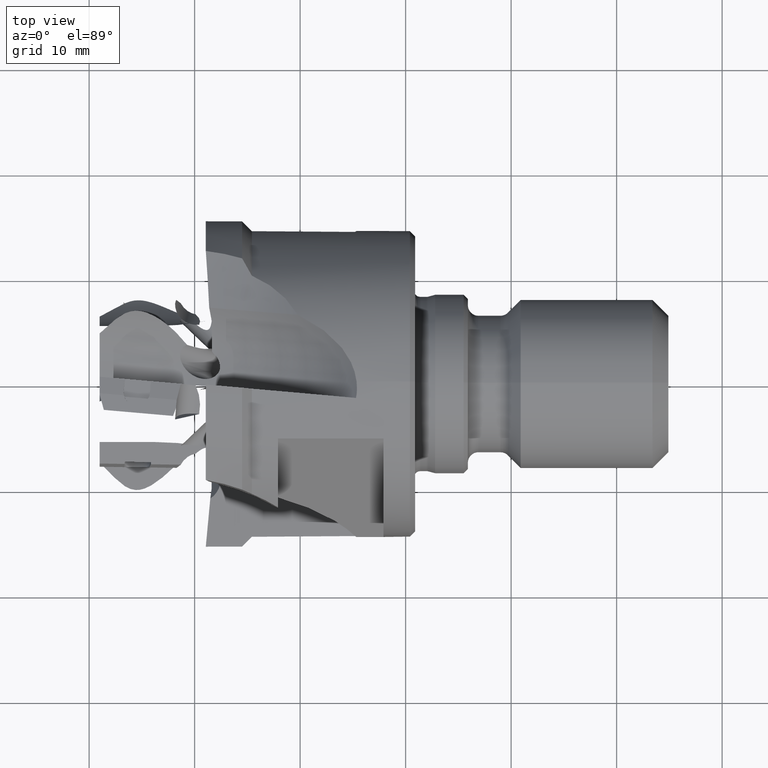
[diagram: clean part render]
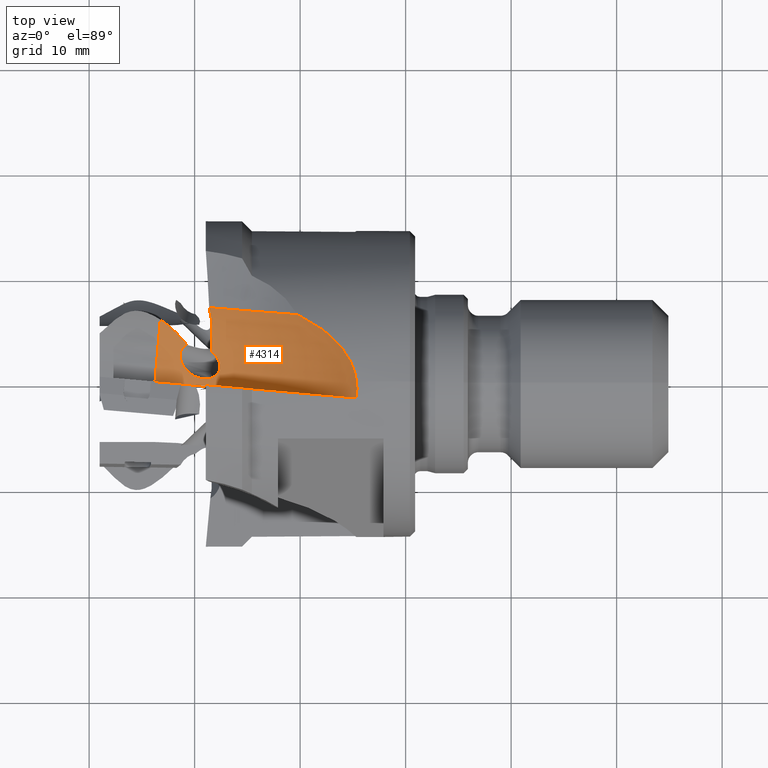
[diagram: same view with one face highlighted and labeled with its STEP entity id]
A machine part, top view. The second image highlights one B-rep face of the part: STEP entity #4314.
In plain terms, the highlighted toroidal blend (fillet) surface has major radius 15 mm and minor (blend) radius 10 mm.
Its self-contained STEP definition (entity closure, byte-faithful):
#149 = CARTESIAN_POINT ( 'NONE',  ( 11.62040207614973900, 5.842839617044916200, 8.169476005907927900 ) ) ;
#177 = AXIS2_PLACEMENT_3D ( 'NONE', #4161, #1742, #4566 ) ;
#202 = ORIENTED_EDGE ( 'NONE', *, *, #1705, .T. ) ;
#216 = CARTESIAN_POINT ( 'NONE',  ( 25.25626421127208200, 0.6180941141647086100, 14.49302102146408100 ) ) ;
#242 = CARTESIAN_POINT ( 'NONE',  ( 8.311445753925987400, 4.700150141738966200, 6.764113308000577100 ) ) ;
#264 = CARTESIAN_POINT ( 'NONE',  ( 12.36820033707103200, 1.210861548241722900, 6.373486843671983600 ) ) ;
#286 = CARTESIAN_POINT ( 'NONE',  ( 9.624440902516836300, 0.8633359141217195100, 5.775683549730444200 ) ) ;
#310 = CARTESIAN_POINT ( 'NONE',  ( 8.973780233219631700, 3.439062724074319000, 6.279026537848094900 ) ) ;
#463 = VERTEX_POINT ( 'NONE', #2333 ) ;
#487 = EDGE_CURVE ( 'NONE', #4428, #1179, #2420, .T. ) ;
#541 = ORIENTED_EDGE ( 'NONE', *, *, #2787, .F. ) ;
#560 = CARTESIAN_POINT ( 'NONE',  ( 11.62927645837238300, 5.341849983675219300, 7.803824103601486200 ) ) ;
#587 = EDGE_LOOP ( 'NONE', ( #2078, #4965, #202, #1612, #4736, #3896, #541 ) ) ;
#592 = CARTESIAN_POINT ( 'NONE',  ( 11.65016111285255100, 2.948032725041656500, 6.612322660711766900 ) ) ;
#610 = CARTESIAN_POINT ( 'NONE',  ( 19.76019912656164100, 6.341979804039541000, 13.03952806527727400 ) ) ;
#632 = CARTESIAN_POINT ( 'NONE',  ( 25.38706660557347700, -0.4723879057771591100, 14.49397100215186800 ) ) ;
#647 = CARTESIAN_POINT ( 'NONE',  ( 7.237360433593733200, 5.657643325198540300, 7.226557950404097300 ) ) ;
#674 = CARTESIAN_POINT ( 'NONE',  ( 12.22578521174197500, 0.8868403021073662000, 6.292787714584987300 ) ) ;
#700 = CARTESIAN_POINT ( 'NONE',  ( 9.219100501906433800, 1.224601874279930700, 5.761323182750929000 ) ) ;
#718 = CARTESIAN_POINT ( 'NONE',  ( 9.286948919763602800, 3.598368822639253400, 6.385933471378716100 ) ) ;
#731 = CARTESIAN_POINT ( 'NONE',  ( 6.880592836451517000, 7.468799345101362300, 30.50000000000000000 ) ) ;
#815 = EDGE_CURVE ( 'NONE', #5224, #2155, #2704, .T. ) ;
#968 = CARTESIAN_POINT ( 'NONE',  ( 11.64256579499039500, 4.466984686839180300, 7.264191897523369700 ) ) ;
#1018 = CARTESIAN_POINT ( 'NONE',  ( 21.25853223110615500, 5.556980533064818300, 13.40345360880179900 ) ) ;
#1040 = CARTESIAN_POINT ( 'NONE',  ( 25.36508079598129900, -1.136974927307109700, 14.45704382284395900 ) ) ;
#1042 = CARTESIAN_POINT ( 'NONE',  ( 9.103039246828153400, 3.831313620027728000, 6.450913468410862900 ) ) ;
#1048 = CARTESIAN_POINT ( 'NONE',  ( 6.235640340118845200, 0.09695857922244559300, 30.50000000000000000 ) ) ;
#1089 = CARTESIAN_POINT ( 'NONE',  ( 11.82297975665780700, 0.5383987226494269000, 6.161765604053906400 ) ) ;
#1111 = CARTESIAN_POINT ( 'NONE',  ( 8.893494730030409900, 1.660384787003970700, 5.787236684070295600 ) ) ;
#1136 = CARTESIAN_POINT ( 'NONE',  ( 6.235640340118845200, 0.09695857922244688300, 30.50000000000000000 ) ) ;
#1140 = DIRECTION ( 'NONE',  ( 0.9961946980917455500, -0.08715574274765840200, 0.0000000000000000000 ) ) ;
#1179 = VERTEX_POINT ( 'NONE', #5210 ) ;
#1227 = CARTESIAN_POINT ( 'NONE',  ( 6.749510904247075300, 5.970526004057569800, 7.423048672349310100 ) ) ;
#1400 = CARTESIAN_POINT ( 'NONE',  ( 11.65869732733848700, 3.340161131643426100, 6.747328634741006000 ) ) ;
#1451 = CARTESIAN_POINT ( 'NONE',  ( 22.64090620254945900, 4.538469945289622700, 13.77478334541827500 ) ) ;
#1475 = CARTESIAN_POINT ( 'NONE',  ( 25.30076740495740900, -1.571023907632205500, 14.41464130256622400 ) ) ;
#1498 = CARTESIAN_POINT ( 'NONE',  ( 11.91097374222792900, 2.697379221231634100, 6.594825417337390600 ) ) ;
#1520 = CARTESIAN_POINT ( 'NONE',  ( 11.31525033755072200, 0.3800614835425146800, 6.038475371559845200 ) ) ;
#1539 = AXIS2_PLACEMENT_3D ( 'NONE', #1048, #3457, #4713 ) ;
#1543 = CARTESIAN_POINT ( 'NONE',  ( 8.675850753491911100, 2.153822616286278800, 5.860174659531640600 ) ) ;
#1563 = EDGE_CURVE ( 'NONE', #463, #2446, #2545, .T. ) ;
#1575 = DIRECTION ( 'NONE',  ( 0.9961946980917454300, -0.08715574274765837400, 0.0000000000000000000 ) ) ;
#1612 = ORIENTED_EDGE ( 'NONE', *, *, #815, .T. ) ;
#1692 = CARTESIAN_POINT ( 'NONE',  ( 11.39599755291136400, 6.933089684553344500, 9.096996975690322200 ) ) ;
#1705 = EDGE_CURVE ( 'NONE', #2446, #5224, #4995, .T. ) ;
#1742 = DIRECTION ( 'NONE',  ( 0.9961946980917456600, -0.08715574274765840200, 0.0000000000000000000 ) ) ;
#1859 = CARTESIAN_POINT ( 'NONE',  ( 23.57876981133500000, 3.646934935347464300, 14.03810589235506400 ) ) ;
#1900 = CARTESIAN_POINT ( 'NONE',  ( 12.22274913942410500, 2.253117042870424600, 6.548146457255096900 ) ) ;
#1929 = CARTESIAN_POINT ( 'NONE',  ( 10.78085899839791600, 0.3833703870479939800, 5.931846504145160500 ) ) ;
#1948 = CARTESIAN_POINT ( 'NONE',  ( 8.607769582630277600, 2.680659330342650500, 5.985727605852226000 ) ) ;
#1967 = CARTESIAN_POINT ( 'NONE',  ( 19.76019912656164100, 6.341979804039541000, 13.03952806527727400 ) ) ;
#2078 = ORIENTED_EDGE ( 'NONE', *, *, #3494, .F. ) ;
#2106 = B_SPLINE_CURVE_WITH_KNOTS ( 'NONE', 3,
 ( #610, #3043, #1018, #3865, #1451, #4271, #1859, #4686, #2260, #5106, #2658, #216, #3059, #632, #3467, #1040, #3883, #1475 ),
 .UNSPECIFIED., .F., .F.,
 ( 4, 2, 2, 2, 2, 2, 2, 2, 4 ),
 ( 0.003162182537563769900, 0.005757075737111741000, 0.007054522336885731700, 0.008351968936659721600, 0.009649415536433711400, 0.01094686213620770100, 0.01224430873598169100, 0.01289303203586868500, 0.01354175533575568300 ),
 .UNSPECIFIED. ) ;
#2155 = VERTEX_POINT ( 'NONE', #1227 ) ;
#2187 = CARTESIAN_POINT ( 'NONE',  ( 11.48493059040608700, 6.483476763012833800, 8.677977519832804600 ) ) ;
#2260 = CARTESIAN_POINT ( 'NONE',  ( 24.38241051257128000, 2.617081937783712700, 14.26698340604642600 ) ) ;
#2302 = CARTESIAN_POINT ( 'NONE',  ( 12.40242138433435800, 1.742669801890675000, 6.476038321408037900 ) ) ;
#2317 = CARTESIAN_POINT ( 'NONE',  ( 10.25927330250404500, 0.5177511723948123900, 5.846849481717614900 ) ) ;
#2333 = CARTESIAN_POINT ( 'NONE',  ( 11.37910749741807400, 7.075230309561622000, 9.248399356544077000 ) ) ;
#2341 = CARTESIAN_POINT ( 'NONE',  ( 8.685793251471489300, 3.017926659365065300, 6.097636966474814500 ) ) ;
#2420 = CIRCLE ( 'NONE', #3458, 25.00000000000000700 ) ;
#2446 = VERTEX_POINT ( 'NONE', #3273 ) ;
#2454 = CARTESIAN_POINT ( 'NONE',  ( 11.37910749741807400, 7.075230309561622000, 9.248399356544077000 ) ) ;
#2545 = B_SPLINE_CURVE_WITH_KNOTS ( 'NONE', 3,
 ( #2454, #1692, #4614, #2187, #5039, #2596, #149, #2995, #560, #3397, #968, #3818, #1400, #4222 ),
 .UNSPECIFIED., .F., .F.,
 ( 4, 2, 2, 2, 2, 2, 4 ),
 ( 3.127317220692750800E-018, 0.0006207502686696436000, 0.001241500537339283900, 0.001862250806008924500, 0.002483001074678564900, 0.003724501612017847300, 0.004966002149357130600 ),
 .UNSPECIFIED. ) ;
#2596 = CARTESIAN_POINT ( 'NONE',  ( 11.61324121807360800, 6.006703365417168400, 8.298901688357617000 ) ) ;
#2658 = CARTESIAN_POINT ( 'NONE',  ( 24.98814557287158100, 1.463724322524141200, 14.43215887420229200 ) ) ;
#2675 = CARTESIAN_POINT ( 'NONE',  ( 8.515038379111343800, 4.492260514789988300, 6.680072733957624500 ) ) ;
#2676 = CARTESIAN_POINT ( 'NONE',  ( 11.78700999713943500, 2.828056568450096900, 6.605306206511643900 ) ) ;
#2698 = CARTESIAN_POINT ( 'NONE',  ( 12.40310301034165800, 1.384582993751315200, 6.410314342611646200 ) ) ;
#2704 = B_SPLINE_CURVE_WITH_KNOTS ( 'NONE', 3,
 ( #5132, #1042, #3885, #2675, #242, #3081, #647, #3492 ),
 .UNSPECIFIED., .F., .F.,
 ( 4, 2, 2, 4 ),
 ( 0.01105054996783963800, 0.01196262143170166900, 0.01287469289556369800, 0.01469883582328775800 ),
 .UNSPECIFIED. ) ;
#2718 = CARTESIAN_POINT ( 'NONE',  ( 9.775620072216600700, 0.7603343264714822500, 5.788531117079362100 ) ) ;
#2744 = CARTESIAN_POINT ( 'NONE',  ( 8.805240822593519900, 3.243650115517812300, 6.187752163093893600 ) ) ;
#2787 = EDGE_CURVE ( 'NONE', #3869, #1179, #2106, .T. ) ;
#2995 = CARTESIAN_POINT ( 'NONE',  ( 11.62690379072418200, 5.510978594701371400, 7.921991764348072200 ) ) ;
#3043 = CARTESIAN_POINT ( 'NONE',  ( 20.52341424227709900, 5.975691452295576400, 13.21767817297952000 ) ) ;
#3059 = CARTESIAN_POINT ( 'NONE',  ( 25.34057972918637700, 0.1871420122119114300, 14.50545969096602200 ) ) ;
#3081 = CARTESIAN_POINT ( 'NONE',  ( 7.681312353300567600, 5.295997647432011800, 7.029841936098525100 ) ) ;
#3089 = CARTESIAN_POINT ( 'NONE',  ( 9.286948919763602800, 3.598368822639253400, 6.385933471378716100 ) ) ;
#3104 = CARTESIAN_POINT ( 'NONE',  ( 12.34067266959516300, 1.127232069846468200, 6.354179337677938300 ) ) ;
#3123 = CARTESIAN_POINT ( 'NONE',  ( 9.345661108438902100, 1.096123961742234900, 5.762103409160745900 ) ) ;
#3146 = CARTESIAN_POINT ( 'NONE',  ( 9.122988463175637700, 3.536859640354108200, 6.337217082869029700 ) ) ;
#3212 = FACE_OUTER_BOUND ( 'NONE', #587, .T. ) ;
#3273 = CARTESIAN_POINT ( 'NONE',  ( 11.65016111285255100, 2.948032725041656500, 6.612322660711766900 ) ) ;
#3397 = CARTESIAN_POINT ( 'NONE',  ( 11.63738157166819900, 4.824658865898796600, 7.466517449746006300 ) ) ;
#3457 = DIRECTION ( 'NONE',  ( -0.08715574274765840200, -0.9961946980917455500, -0.0000000000000000000 ) ) ;
#3458 = AXIS2_PLACEMENT_3D ( 'NONE', #1136, #3982, #1575 ) ;
#3467 = CARTESIAN_POINT ( 'NONE',  ( 25.38898366338872800, -0.6959169704676176900, 14.48497592856719000 ) ) ;
#3492 = CARTESIAN_POINT ( 'NONE',  ( 6.749510904247075300, 5.970526004057569800, 7.423048672349310100 ) ) ;
#3494 = EDGE_CURVE ( 'NONE', #463, #3869, #5074, .T. ) ;
#3515 = CARTESIAN_POINT ( 'NONE',  ( 12.10729820227730400, 0.7481676288909227000, 6.248678433990927600 ) ) ;
#3541 = CARTESIAN_POINT ( 'NONE',  ( 8.992715099142243300, 1.506729906162302100, 5.773798876687432200 ) ) ;
#3578 = DIRECTION ( 'NONE',  ( -0.08715574274765840200, -0.9961946980917455500, -0.0000000000000000000 ) ) ;
#3818 = CARTESIAN_POINT ( 'NONE',  ( 11.65229283007205800, 3.725832115900005600, 6.904703149730536000 ) ) ;
#3865 = CARTESIAN_POINT ( 'NONE',  ( 22.30143319302109000, 4.809680050701021300, 13.68165297513167500 ) ) ;
#3869 = VERTEX_POINT ( 'NONE', #1967 ) ;
#3883 = CARTESIAN_POINT ( 'NONE',  ( 25.33950646119371800, -1.355138320165079500, 14.43817025567057800 ) ) ;
#3885 = CARTESIAN_POINT ( 'NONE',  ( 8.910597050416468400, 4.058206200987908300, 6.523554801940568900 ) ) ;
#3896 = ORIENTED_EDGE ( 'NONE', *, *, #487, .T. ) ;
#3931 = CARTESIAN_POINT ( 'NONE',  ( 11.65715308151974000, 0.4657683230740418700, 6.118679403254008200 ) ) ;
#3955 = CARTESIAN_POINT ( 'NONE',  ( 8.736043045721498100, 1.981742949596031500, 5.830086948313492300 ) ) ;
#3982 = DIRECTION ( 'NONE',  ( -0.08715574274765840200, -0.9961946980917455500, -0.0000000000000000000 ) ) ;
#4103 = AXIS2_PLACEMENT_3D ( 'NONE', #731, #3578, #1140 ) ;
#4161 = CARTESIAN_POINT ( 'NONE',  ( 6.235640340118845200, 0.09695857922244557900, 15.49999999999999800 ) ) ;
#4222 = CARTESIAN_POINT ( 'NONE',  ( 11.65016111285255100, 2.948032725041656500, 6.612322660711766900 ) ) ;
#4271 = CARTESIAN_POINT ( 'NONE',  ( 23.27895531259824200, 3.957304061100822300, 13.95285312133345300 ) ) ;
#4314 = ADVANCED_FACE ( 'NONE', ( #3212 ), #5246, .F. ) ;
#4318 = CARTESIAN_POINT ( 'NONE',  ( 12.12858280041872800, 2.410786570420362800, 6.566365827665984900 ) ) ;
#4337 = CARTESIAN_POINT ( 'NONE',  ( 11.13466741410868700, 0.3656094953099888200, 6.000298415515159100 ) ) ;
#4360 = CARTESIAN_POINT ( 'NONE',  ( 8.611957755480396800, 2.501088749850872700, 5.937438266872195700 ) ) ;
#4428 = VERTEX_POINT ( 'NONE', #5207 ) ;
#4566 = DIRECTION ( 'NONE',  ( 0.08715574274765836000, 0.9961946980917455500, 0.0000000000000000000 ) ) ;
#4614 = CARTESIAN_POINT ( 'NONE',  ( 11.41244624163701000, 6.786522117301117000, 8.950505995124682800 ) ) ;
#4681 = CIRCLE ( 'NONE', #177, 10.00000000000000200 ) ;
#4686 = CARTESIAN_POINT ( 'NONE',  ( 24.13120789750467300, 2.976510190610858000, 14.19538441018141700 ) ) ;
#4713 = DIRECTION ( 'NONE',  ( 0.9961946980917454300, -0.08715574274765838800, 0.0000000000000000000 ) ) ;
#4730 = CARTESIAN_POINT ( 'NONE',  ( 12.35899157175472900, 1.921250626704500400, 6.503289115115531000 ) ) ;
#4736 = ORIENTED_EDGE ( 'NONE', *, *, #5040, .F. ) ;
#4752 = CARTESIAN_POINT ( 'NONE',  ( 10.60335385109479300, 0.4154133075768688400, 5.900710467885481600 ) ) ;
#4775 = CARTESIAN_POINT ( 'NONE',  ( 8.658756110312056700, 2.934375500134873700, 6.068032637336555600 ) ) ;
#4965 = ORIENTED_EDGE ( 'NONE', *, *, #1563, .T. ) ;
#4995 = B_SPLINE_CURVE_WITH_KNOTS ( 'NONE', 3,
 ( #592, #2676, #1498, #4318, #1900, #4730, #2302, #5148, #2698, #264, #3104, #674, #3515, #1089, #3931, #1520, #4337, #1929, #4752, #2317, #5172, #2718, #286, #3123, #700, #3541, #1111, #3955, #1543, #4360, #1948, #4775, #2341, #5188, #2744, #310, #3146, #718 ),
 .UNSPECIFIED., .F., .F.,
 ( 4, 2, 2, 2, 2, 2, 2, 2, 2, 2, 2, 2, 2, 2, 2, 2, 2, 2, 4 ),
 ( 0.005870132713842488700, 0.006411032264773185700, 0.006951931815703881800, 0.007492831366634577900, 0.007763281142099925100, 0.008033730917565273100, 0.008574630468495967500, 0.009115530019426661800, 0.009656429570357356200, 0.01019732912128805100, 0.01073822867221874500, 0.01127912822314943900, 0.01182002777408013400, 0.01236092732501082800, 0.01290182687594152200, 0.01344272642687221700, 0.01371317620233756600, 0.01398362597780291300, 0.01452452552873360700 ),
 .UNSPECIFIED. ) ;
#5039 = CARTESIAN_POINT ( 'NONE',  ( 11.54287660901346300, 6.326973000553123500, 8.552414785012514300 ) ) ;
#5040 = EDGE_CURVE ( 'NONE', #4428, #2155, #4681, .T. ) ;
#5074 = CIRCLE ( 'NONE', #4103, 21.72606868832009800 ) ;
#5106 = CARTESIAN_POINT ( 'NONE',  ( 24.80956010891354800, 1.862226284890419600, 14.38499380053189500 ) ) ;
#5132 = CARTESIAN_POINT ( 'NONE',  ( 9.286948919763602800, 3.598368822639253400, 6.385933471378716100 ) ) ;
#5148 = CARTESIAN_POINT ( 'NONE',  ( 12.41018834513265300, 1.475325923346760800, 6.427913578051680500 ) ) ;
#5172 = CARTESIAN_POINT ( 'NONE',  ( 10.09395077352149000, 0.5872427854156129200, 5.824258286708951200 ) ) ;
#5188 = CARTESIAN_POINT ( 'NONE',  ( 8.759155545725272800, 3.172324374799286000, 6.157458521786493200 ) ) ;
#5207 = CARTESIAN_POINT ( 'NONE',  ( 6.235640340118845200, 0.09695857922244688300, 5.499999999999998200 ) ) ;
#5210 = CARTESIAN_POINT ( 'NONE',  ( 25.30076740495740900, -1.571023907632205500, 14.41464130256622400 ) ) ;
#5224 = VERTEX_POINT ( 'NONE', #3089 ) ;
#5246 = TOROIDAL_SURFACE ( 'NONE', #1539, 15.00000000000000200, 10.00000000000000200 ) ;